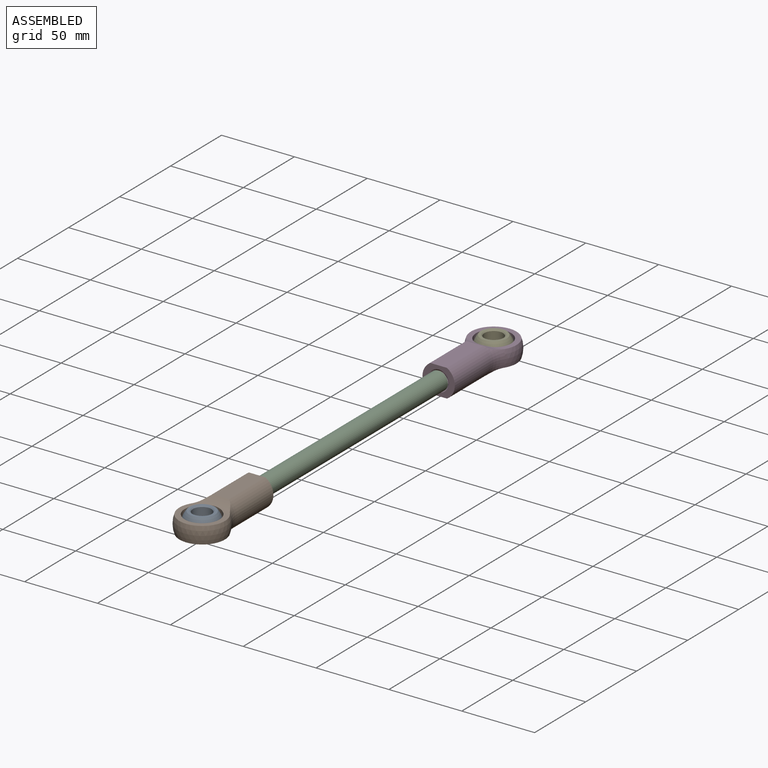
[diagram: assembled view]
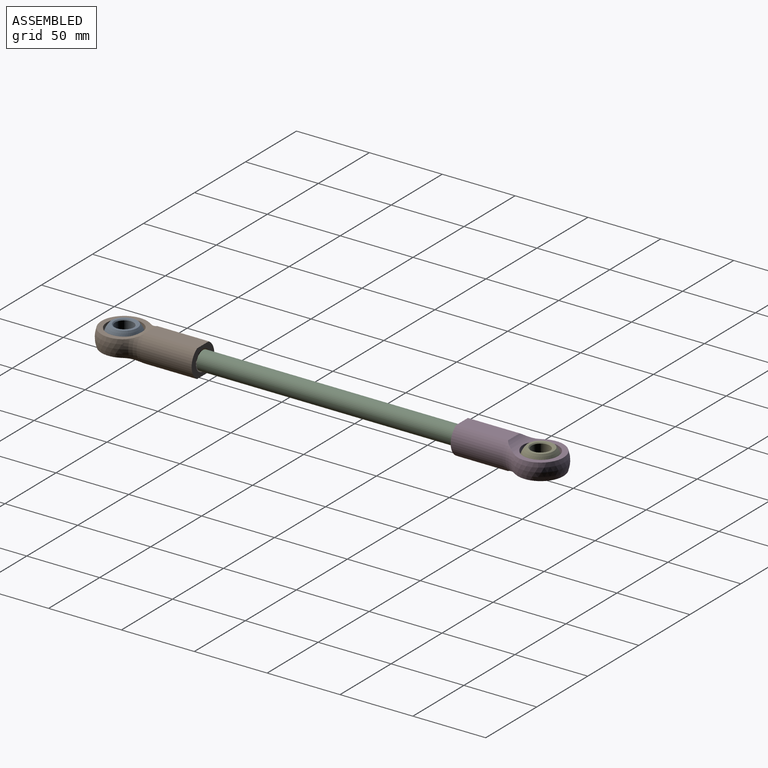
[diagram: assembled view, second angle]
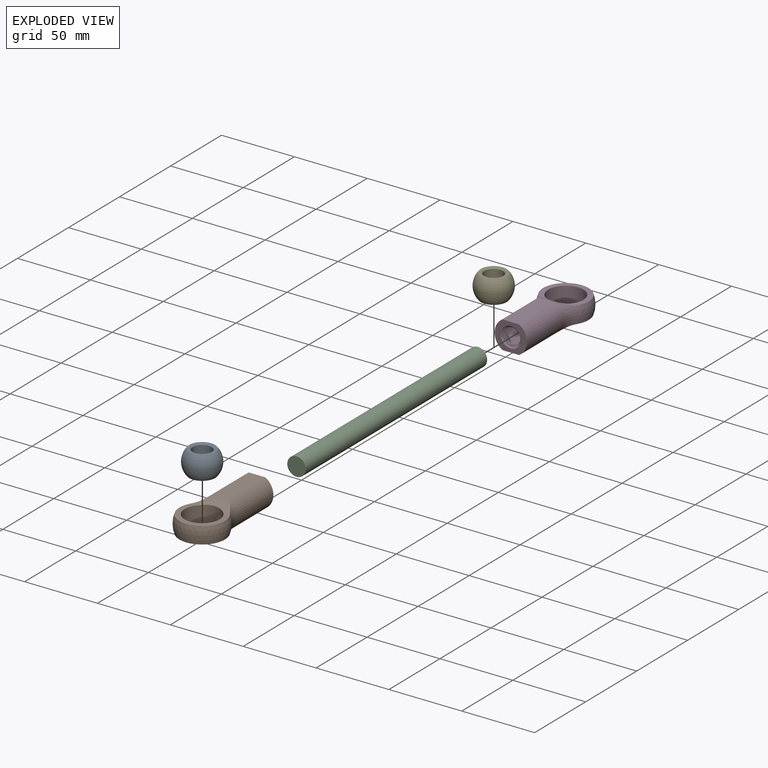
[diagram: exploded view]
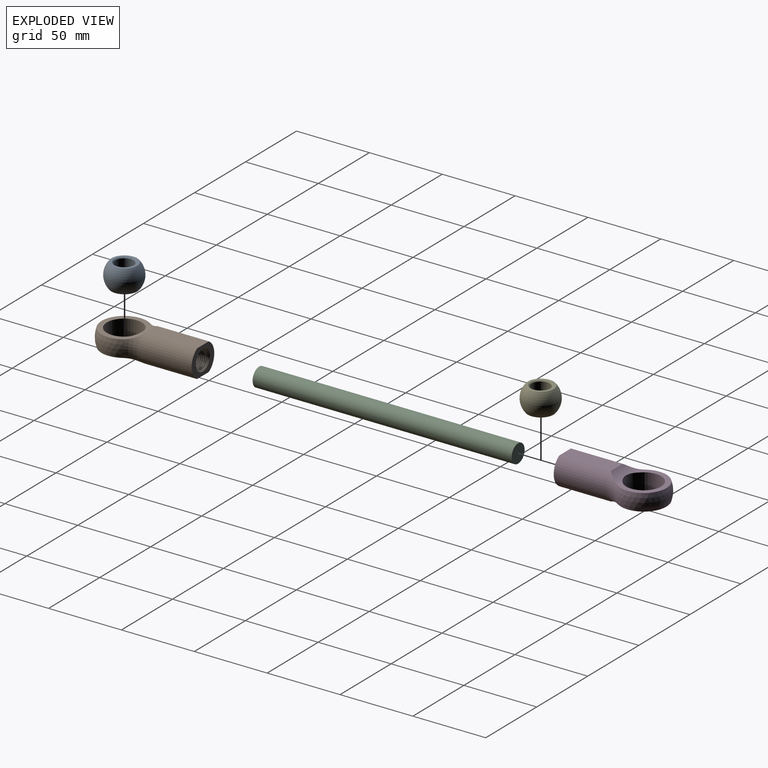
[diagram: exploded view, second angle]
ASSEMBLY  parts=5 mates=4
PART A: 6 faces, bbox 23.8x23.8x15.9 mm
  f0: cone r=6.99mm half-angle=45deg, axis (0,0,1), area 37.6mm2, adj f2,f4
  f1: cone r=6.99mm half-angle=45deg, axis (0,0,-1), area 37.6mm2, adj f2,f5
  f2: cylinder r=6.35mm len=14.61mm, axis (0,0,1), area 582.7mm2, adj f0,f1
  f3: sphere r=11.91mm, area 1187.6mm2, adj f4,f5
  f4: plane 17.75x17.75mm, normal (0,0,1), area 94.1mm2, adj f0,f3
  f5: plane 17.75x17.75mm, normal (0,0,-1), area 94.1mm2, adj f1,f3
PART B: 19 faces, bbox 35x71.1x30.1 mm
  f0: cylinder r=12.03mm len=24.05mm, axis (0,0,1), area 869.6mm2, adj f15,f16,f17,f18
  f1: sphere r=16.67mm, area 844.9mm2, adj f2,f6,f15,f16,f17,f18
  f2: torus R=27.78mm, axis (0,-1,0), area 150mm2, adj f1,f8,f17,f18
  f3: cylinder r=6.35mm len=26.35mm, axis (0,-1,0), area 131.4mm2, adj f4,f9,f10,f12
  f4: cone r=6.99mm half-angle=45deg, axis (0,-1,0), area 59.8mm2, adj f3,f7,f10,f11,f12
  f5: cylinder r=11.11mm len=35.55mm, axis (0,1,0), area 813.5mm2, adj f6,f7,f13,f14
  f6: torus R=27.78mm, axis (0,-1,0), area 150mm2, adj f1,f5,f17,f18
  f7: plane 22.23x19.05mm, normal (0,-1,0), area 210.1mm2, adj f4,f5,f8,f13,f14
  f8: cylinder r=11.11mm len=35.55mm, axis (0,1,0), area 813.5mm2, adj f2,f7,f13,f14
  f9: plane 12.43x12.41mm, normal (0,-1,0), area 111mm2, adj f3,f10,f11,f12
  f10: bspline ~27.31x12.7mm, area 726.7mm2, adj f3,f4,f9,f11
  f11: cylinder r=5.53mm len=25.53mm, axis (0,1,0), area 110.6mm2, adj f4,f9,f10,f12
  f12: bspline ~26.83x12.7mm, area 726.3mm2, adj f3,f4,f9,f11
  f13: plane 35.55x11.45mm, normal (0,0,1), area 406.9mm2, adj f5,f7,f8,f17
  f14: plane 35.55x11.45mm, normal (0,0,-1), area 406.9mm2, adj f5,f7,f8,f18
  f15: plane 31.29x23.51mm, normal (0,0,1), area 218mm2, adj f0,f1,f17
  f16: plane 31.29x23.51mm, normal (0,0,-1), area 218mm2, adj f0,f1,f18
  f17: cylinder r=16.67mm len=27.04mm, axis (-1,0,0), area 167.4mm2, adj f0,f1,f2,f6,f13,f15
  f18: cylinder r=16.67mm len=27.04mm, axis (1,0,0), area 167.4mm2, adj f0,f1,f2,f6,f14,f16
PART C: 3 faces, bbox 12.7x177.8x12.7 mm
  f0: cylinder r=6.35mm len=177.8mm, axis (0,1,0), area 7093.9mm2, adj f1,f2
  f1: plane 12.7x12.7mm, normal (0,-1,0), area 126.7mm2, adj f0
  f2: plane 12.7x12.7mm, normal (0,1,0), area 126.7mm2, adj f0
PART D: same geometry as B
PART E: same geometry as A
PLACE A t=(-44.98,-181.56,-54.22)mm
PLACE B rot(axis=(0,0,1),180deg) t=(-44.98,-127.58,-54.22)mm
PLACE C t=(-44.98,104.19,-54.22)mm
PLACE D t=(-44.98,104.19,-54.22)mm
PLACE E t=(-44.98,104.19,-54.22)mm
MATE ball E.f0 <-> D.f0  axis (0,0,1) through (-44.98,131.18,-54.22)mm
MATE fastened D.f4 <-> C.f0  axis (0,-1,0) through (-44.98,77.2,-54.22)mm
MATE ball A.f0 <-> B.f0  axis (0,0,1) through (-44.98,-154.57,-54.22)mm
MATE fastened B.f4 <-> C.f0  axis (0,1,0) through (-44.98,-100.6,-54.22)mm
